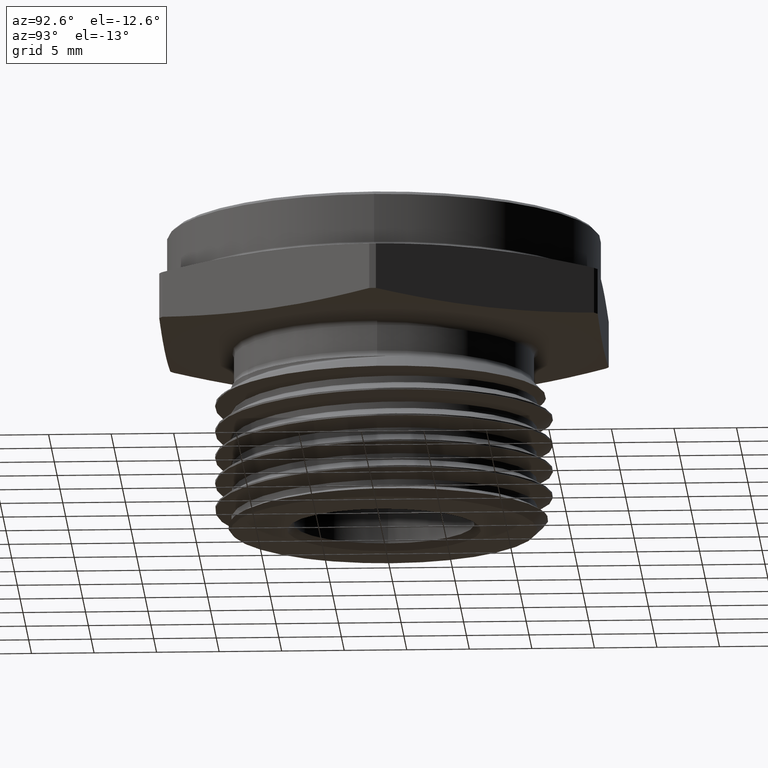
[diagram: clean part render]
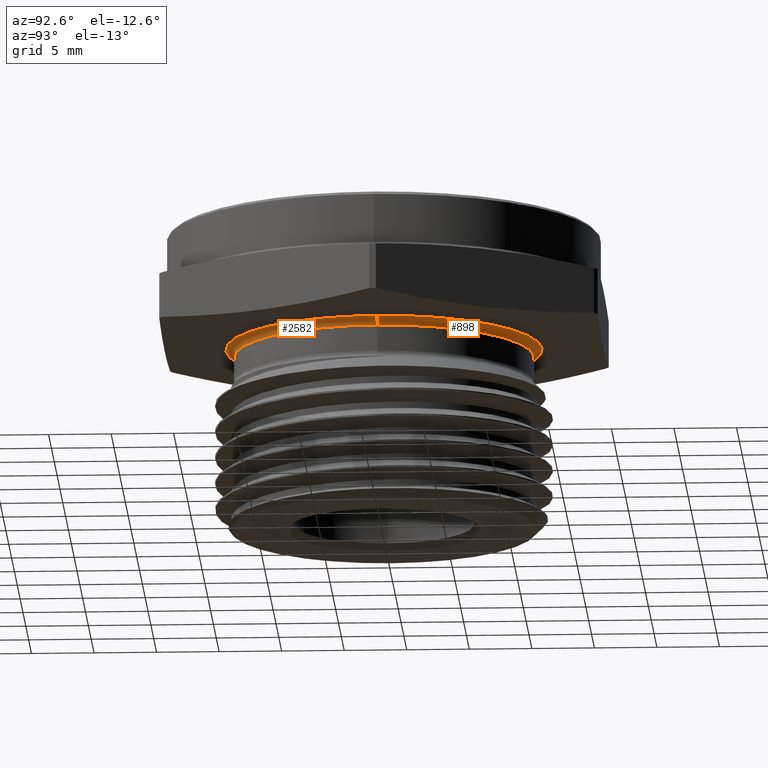
[diagram: same view with one multi-face feature highlighted, each face labeled with its STEP entity id]
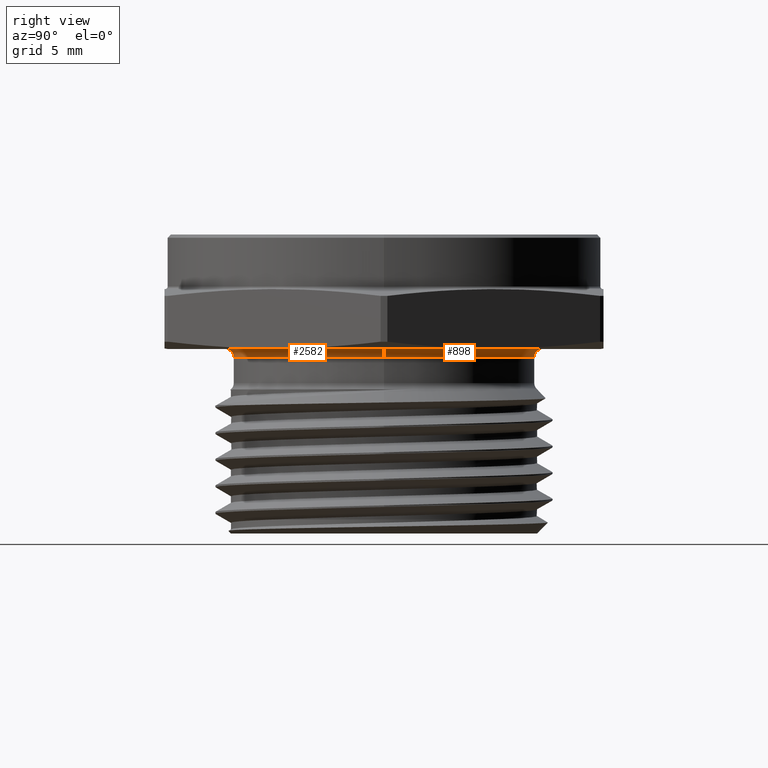
[diagram: same view with one multi-face feature highlighted, each face labeled with its STEP entity id]
A machine part, auxiliary view. The highlighted faces form ONE feature: a constant-radius fillet chain: 2 tangent blend faces with common blend radius 0.635 mm. The faces share edges in the B-rep.
A second angle (right view) of the same feature is appended — it is thin or edge-on in the first view.
Their STEP definitions:
[1] entity #898 (Torus):
#46 = VERTEX_POINT ( 'NONE', #2662 ) ;
#48 = VERTEX_POINT ( 'NONE', #2863 ) ;
#53 = VERTEX_POINT ( 'NONE', #2857 ) ;
#66 = VERTEX_POINT ( 'NONE', #2843 ) ;
#108 = ORIENTED_EDGE ( 'NONE', *, *, #2356, .T. ) ;
#772 = ORIENTED_EDGE ( 'NONE', *, *, #2361, .F. ) ;
#773 = ORIENTED_EDGE ( 'NONE', *, *, #2417, .F. ) ;
#774 = ORIENTED_EDGE ( 'NONE', *, *, #2359, .T. ) ;
#898 = ADVANCED_FACE ( 'NONE', ( #1734 ), #1735, .F. ) ;
#903 = AXIS2_PLACEMENT_3D ( 'NONE', #2144, #2143, #2142 ) ;
#905 = AXIS2_PLACEMENT_3D ( 'NONE', #2137, #2136, #2135 ) ;
#922 = AXIS2_PLACEMENT_3D ( 'NONE', #3102, #3103, #3104 ) ;
#1651 = EDGE_LOOP ( 'NONE', ( #772, #773, #774, #108 ) ) ;
#1734 = FACE_OUTER_BOUND ( 'NONE', #1651, .T. ) ;
#1735 = TOROIDAL_SURFACE ( 'NONE', #2478, 0.4974999999999999400, 0.02500000000000000500 ) ;
#1780 = CIRCLE ( 'NONE', #2505, 0.4724999999999999200 ) ;
#1783 = CIRCLE ( 'NONE', #905, 0.02500000000000000500 ) ;
#1785 = CIRCLE ( 'NONE', #903, 0.02500000000000000100 ) ;
#1840 = CIRCLE ( 'NONE', #922, 0.4974999999999999400 ) ;
#2135 = DIRECTION ( 'NONE',  ( -1.000000000000000000, 1.224646799147351700E-016, 0.0000000000000000000 ) ) ;
#2136 = DIRECTION ( 'NONE',  ( 1.224646799147353200E-016, 1.000000000000000000, 0.0000000000000000000 ) ) ;
#2137 = CARTESIAN_POINT ( 'NONE',  ( -0.4974999999999999400, 6.092617825758081700E-017, -0.02500000000000001200 ) ) ;
#2142 = DIRECTION ( 'NONE',  ( 0.0000000000000000000, 0.0000000000000000000, -1.000000000000000000 ) ) ;
#2143 = DIRECTION ( 'NONE',  ( 0.0000000000000000000, -1.000000000000000000, 0.0000000000000000000 ) ) ;
#2144 = CARTESIAN_POINT ( 'NONE',  ( 0.4974999999999999400, 0.0000000000000000000, -0.02500000000000001200 ) ) ;
#2148 = DIRECTION ( 'NONE',  ( 1.000000000000000000, 0.0000000000000000000, 0.0000000000000000000 ) ) ;
#2149 = DIRECTION ( 'NONE',  ( -0.0000000000000000000, -0.0000000000000000000, 1.000000000000000000 ) ) ;
#2150 = CARTESIAN_POINT ( 'NONE',  ( 0.0000000000000000000, 0.0000000000000000000, -0.02500000000000001500 ) ) ;
#2356 = EDGE_CURVE ( 'NONE', #53, #46, #1780, .T. ) ;
#2359 = EDGE_CURVE ( 'NONE', #48, #53, #1785, .T. ) ;
#2361 = EDGE_CURVE ( 'NONE', #66, #46, #1783, .T. ) ;
#2417 = EDGE_CURVE ( 'NONE', #48, #66, #1840, .T. ) ;
#2478 = AXIS2_PLACEMENT_3D ( 'NONE', #2814, #2817, #2812 ) ;
#2505 = AXIS2_PLACEMENT_3D ( 'NONE', #2150, #2149, #2148 ) ;
#2662 = CARTESIAN_POINT ( 'NONE',  ( -0.4724999999999999200, 5.786456125971242800E-017, -0.02500000000000001500 ) ) ;
#2812 = DIRECTION ( 'NONE',  ( 1.000000000000000000, 0.0000000000000000000, 0.0000000000000000000 ) ) ;
#2814 = CARTESIAN_POINT ( 'NONE',  ( 0.0000000000000000000, 0.0000000000000000000, -0.02500000000000001200 ) ) ;
#2817 = DIRECTION ( 'NONE',  ( -0.0000000000000000000, -0.0000000000000000000, 1.000000000000000000 ) ) ;
#2843 = CARTESIAN_POINT ( 'NONE',  ( -0.4974999999999999400, 6.092617825758081700E-017, -6.402768735150616900E-018 ) ) ;
#2857 = CARTESIAN_POINT ( 'NONE',  ( 0.4724999999999999200, 0.0000000000000000000, -0.02500000000000001500 ) ) ;
#2863 = CARTESIAN_POINT ( 'NONE',  ( 0.4974999999999999400, 0.0000000000000000000, -6.402768735150616900E-018 ) ) ;
#3102 = CARTESIAN_POINT ( 'NONE',  ( 0.0000000000000000000, 0.0000000000000000000, -8.537024980200822600E-018 ) ) ;
#3103 = DIRECTION ( 'NONE',  ( -0.0000000000000000000, -0.0000000000000000000, 1.000000000000000000 ) ) ;
#3104 = DIRECTION ( 'NONE',  ( 1.000000000000000000, 0.0000000000000000000, 0.0000000000000000000 ) ) ;
[2] entity #2582 (Torus):
#46 = VERTEX_POINT ( 'NONE', #2662 ) ;
#48 = VERTEX_POINT ( 'NONE', #2863 ) ;
#53 = VERTEX_POINT ( 'NONE', #2857 ) ;
#66 = VERTEX_POINT ( 'NONE', #2843 ) ;
#106 = ORIENTED_EDGE ( 'NONE', *, *, #2361, .T. ) ;
#732 = CARTESIAN_POINT ( 'NONE',  ( 0.0000000000000000000, 0.0000000000000000000, -0.02500000000000001200 ) ) ;
#734 = DIRECTION ( 'NONE',  ( -0.0000000000000000000, -0.0000000000000000000, 1.000000000000000000 ) ) ;
#737 = DIRECTION ( 'NONE',  ( 1.000000000000000000, 0.0000000000000000000, 0.0000000000000000000 ) ) ;
#868 = ORIENTED_EDGE ( 'NONE', *, *, #2359, .F. ) ;
#870 = ORIENTED_EDGE ( 'NONE', *, *, #2360, .T. ) ;
#903 = AXIS2_PLACEMENT_3D ( 'NONE', #2144, #2143, #2142 ) ;
#904 = AXIS2_PLACEMENT_3D ( 'NONE', #2141, #2140, #2139 ) ;
#905 = AXIS2_PLACEMENT_3D ( 'NONE', #2137, #2136, #2135 ) ;
#906 = AXIS2_PLACEMENT_3D ( 'NONE', #2133, #2132, #2131 ) ;
#990 = AXIS2_PLACEMENT_3D ( 'NONE', #732, #734, #737 ) ;
#1694 = EDGE_LOOP ( 'NONE', ( #2589, #106, #870, #868 ) ) ;
#1783 = CIRCLE ( 'NONE', #905, 0.02500000000000000500 ) ;
#1785 = CIRCLE ( 'NONE', #903, 0.02500000000000000100 ) ;
#1786 = CIRCLE ( 'NONE', #904, 0.4724999999999999200 ) ;
#1788 = CIRCLE ( 'NONE', #906, 0.4974999999999999400 ) ;
#1979 = FACE_OUTER_BOUND ( 'NONE', #1694, .T. ) ;
#1983 = TOROIDAL_SURFACE ( 'NONE', #990, 0.4974999999999999400, 0.02500000000000000500 ) ;
#2131 = DIRECTION ( 'NONE',  ( 1.000000000000000000, 0.0000000000000000000, 0.0000000000000000000 ) ) ;
#2132 = DIRECTION ( 'NONE',  ( -0.0000000000000000000, -0.0000000000000000000, 1.000000000000000000 ) ) ;
#2133 = CARTESIAN_POINT ( 'NONE',  ( 0.0000000000000000000, 0.0000000000000000000, -8.537024980200822600E-018 ) ) ;
#2135 = DIRECTION ( 'NONE',  ( -1.000000000000000000, 1.224646799147351700E-016, 0.0000000000000000000 ) ) ;
#2136 = DIRECTION ( 'NONE',  ( 1.224646799147353200E-016, 1.000000000000000000, 0.0000000000000000000 ) ) ;
#2137 = CARTESIAN_POINT ( 'NONE',  ( -0.4974999999999999400, 6.092617825758081700E-017, -0.02500000000000001200 ) ) ;
#2139 = DIRECTION ( 'NONE',  ( 1.000000000000000000, 0.0000000000000000000, 0.0000000000000000000 ) ) ;
#2140 = DIRECTION ( 'NONE',  ( -0.0000000000000000000, -0.0000000000000000000, 1.000000000000000000 ) ) ;
#2141 = CARTESIAN_POINT ( 'NONE',  ( 0.0000000000000000000, 0.0000000000000000000, -0.02500000000000001500 ) ) ;
#2142 = DIRECTION ( 'NONE',  ( 0.0000000000000000000, 0.0000000000000000000, -1.000000000000000000 ) ) ;
#2143 = DIRECTION ( 'NONE',  ( 0.0000000000000000000, -1.000000000000000000, 0.0000000000000000000 ) ) ;
#2144 = CARTESIAN_POINT ( 'NONE',  ( 0.4974999999999999400, 0.0000000000000000000, -0.02500000000000001200 ) ) ;
#2359 = EDGE_CURVE ( 'NONE', #48, #53, #1785, .T. ) ;
#2360 = EDGE_CURVE ( 'NONE', #46, #53, #1786, .T. ) ;
#2361 = EDGE_CURVE ( 'NONE', #66, #46, #1783, .T. ) ;
#2362 = EDGE_CURVE ( 'NONE', #66, #48, #1788, .T. ) ;
#2582 = ADVANCED_FACE ( 'NONE', ( #1979 ), #1983, .F. ) ;
#2589 = ORIENTED_EDGE ( 'NONE', *, *, #2362, .F. ) ;
#2662 = CARTESIAN_POINT ( 'NONE',  ( -0.4724999999999999200, 5.786456125971242800E-017, -0.02500000000000001500 ) ) ;
#2843 = CARTESIAN_POINT ( 'NONE',  ( -0.4974999999999999400, 6.092617825758081700E-017, -6.402768735150616900E-018 ) ) ;
#2857 = CARTESIAN_POINT ( 'NONE',  ( 0.4724999999999999200, 0.0000000000000000000, -0.02500000000000001500 ) ) ;
#2863 = CARTESIAN_POINT ( 'NONE',  ( 0.4974999999999999400, 0.0000000000000000000, -6.402768735150616900E-018 ) ) ;